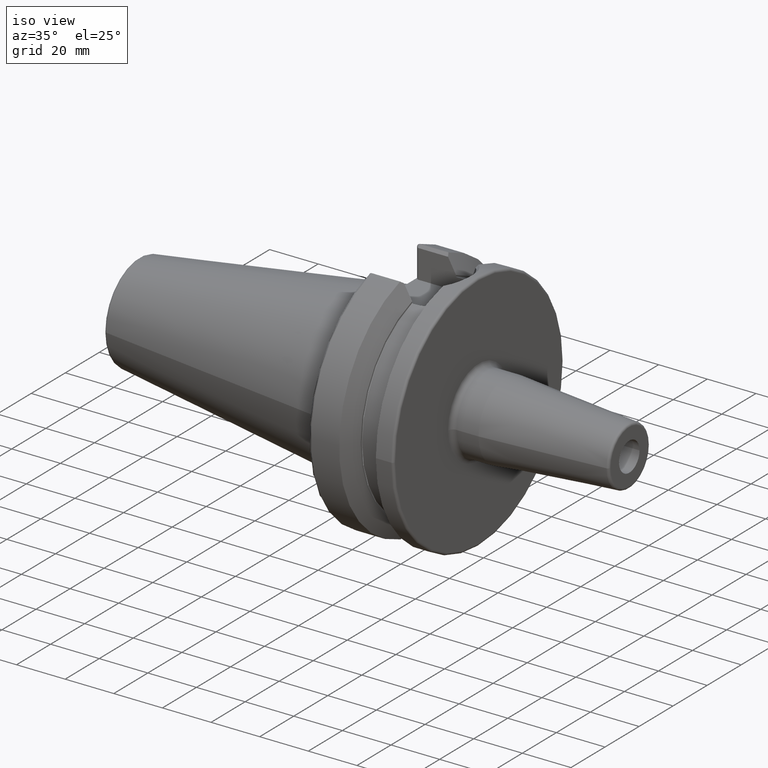
[diagram: clean part render]
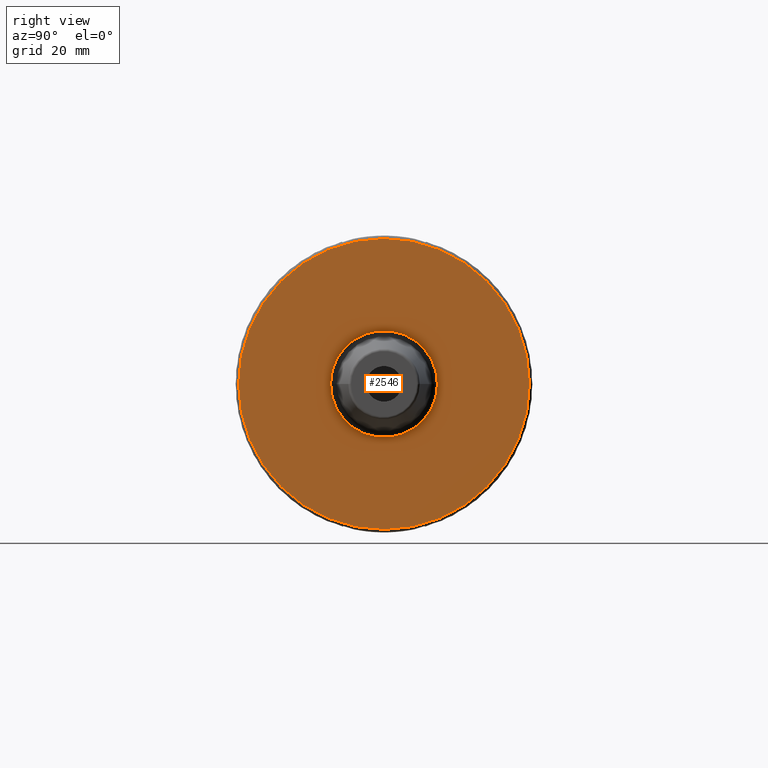
[diagram: tour spotlight — one face highlighted and labeled with its STEP entity id]
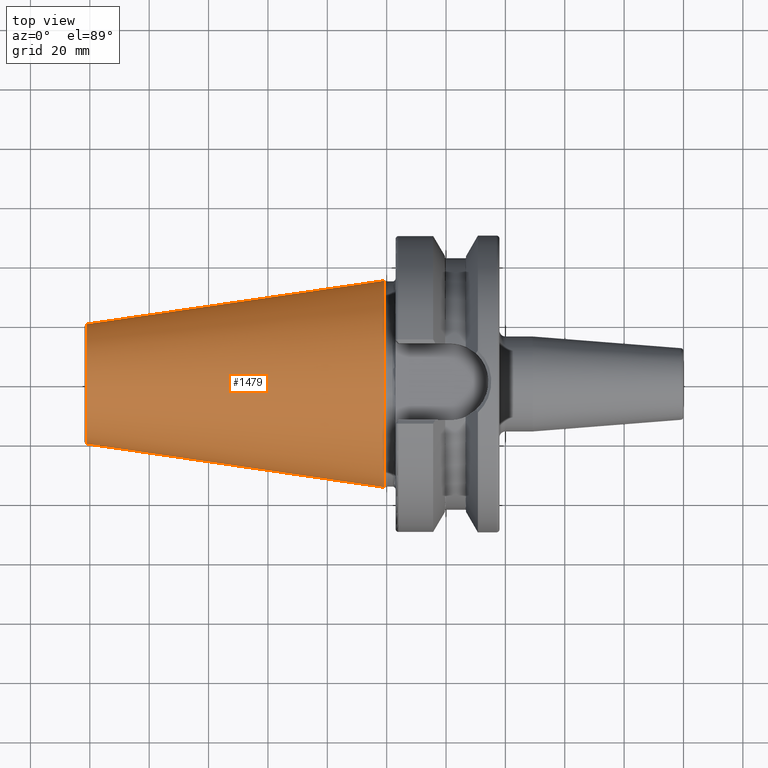
[diagram: tour spotlight — one face highlighted and labeled with its STEP entity id]
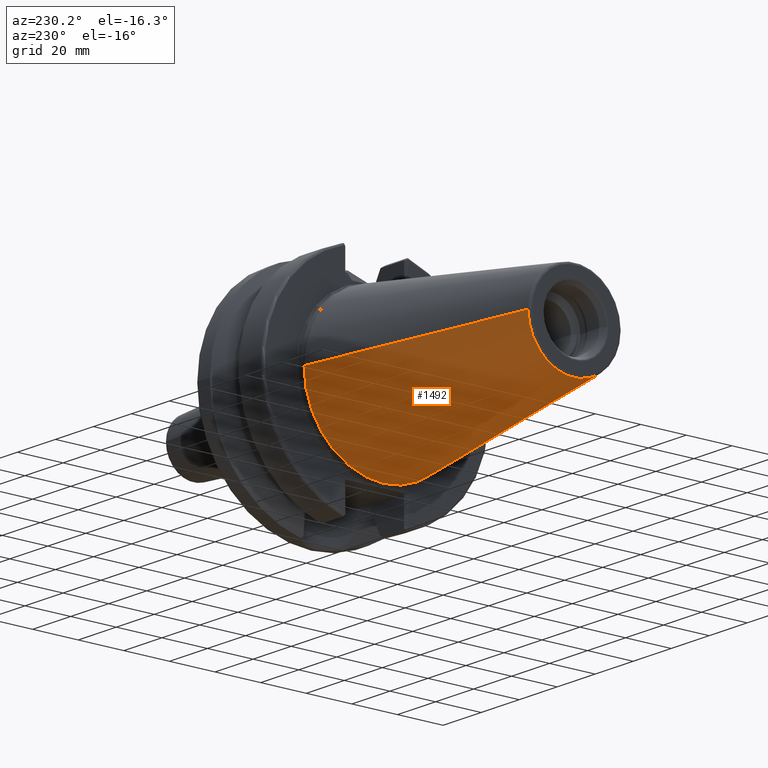
[diagram: tour spotlight — one face highlighted and labeled with its STEP entity id]
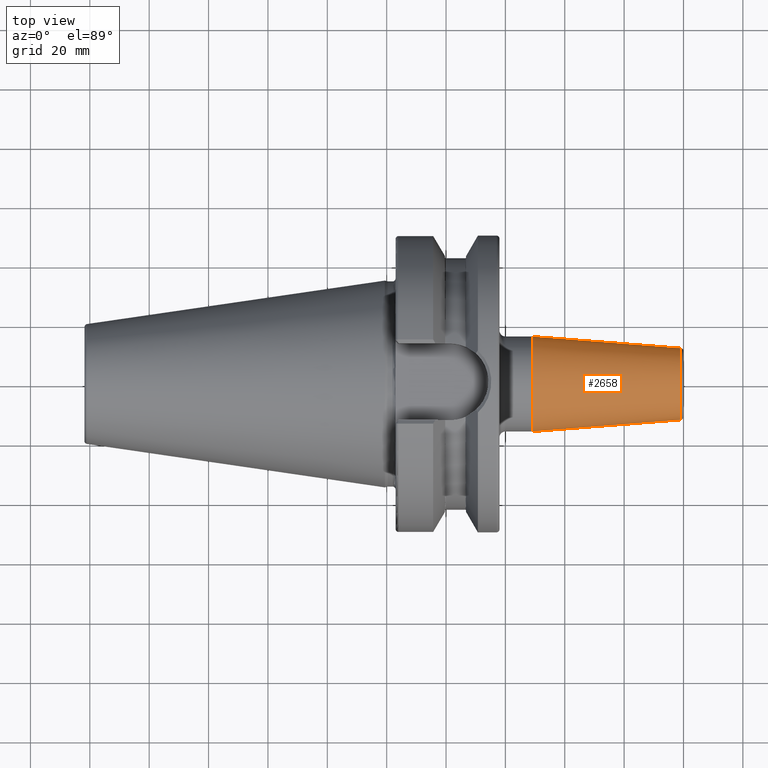
[diagram: tour spotlight — one face highlighted and labeled with its STEP entity id]
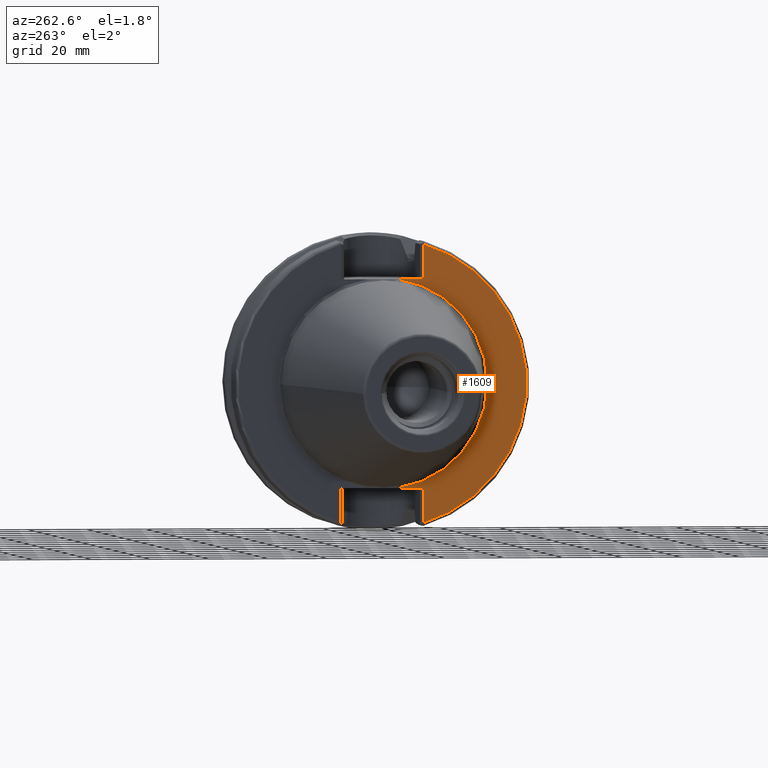
[diagram: tour spotlight — one face highlighted and labeled with its STEP entity id]
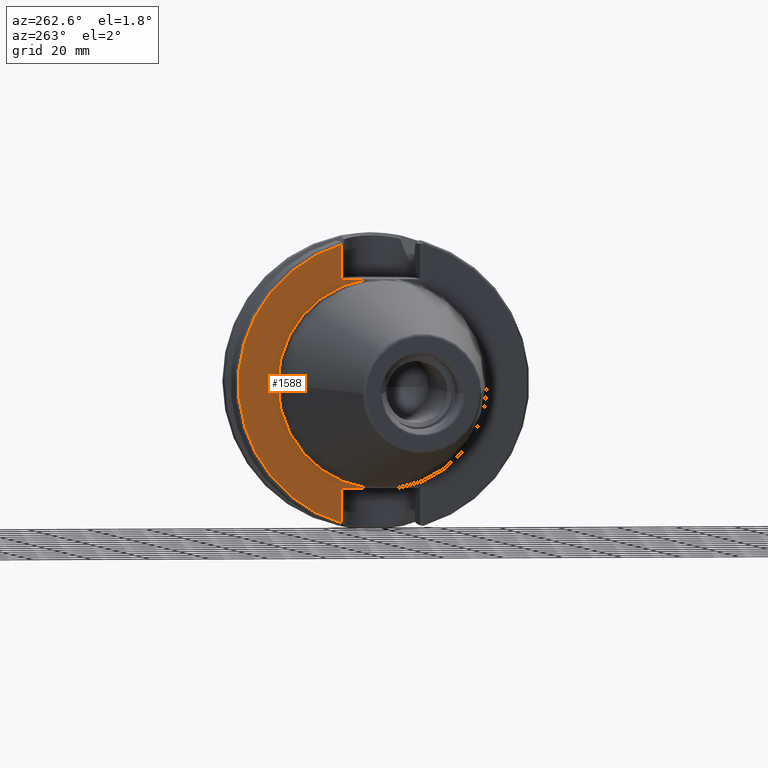
[diagram: tour spotlight — one face highlighted and labeled with its STEP entity id]
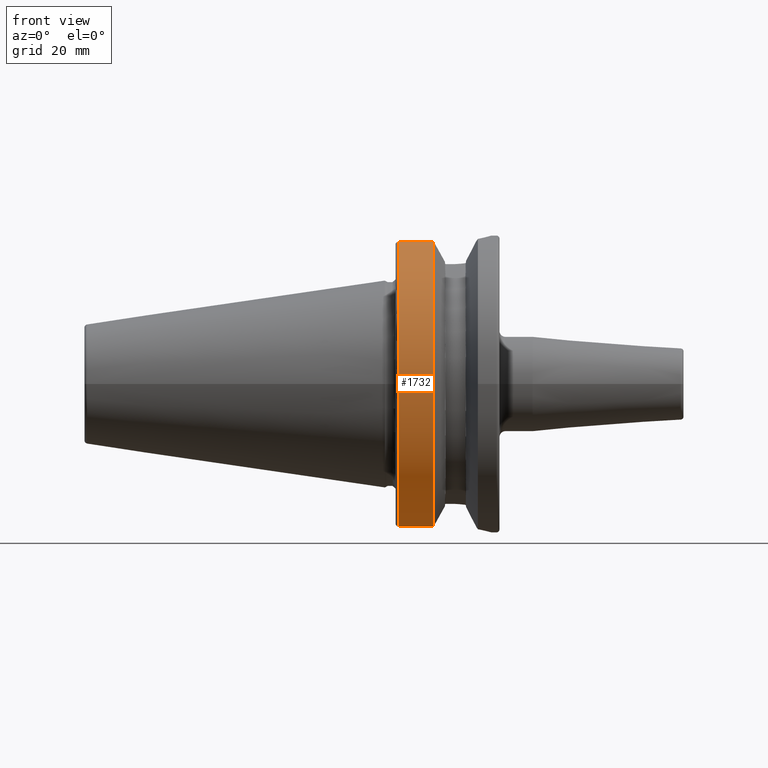
[diagram: tour spotlight — one face highlighted and labeled with its STEP entity id]
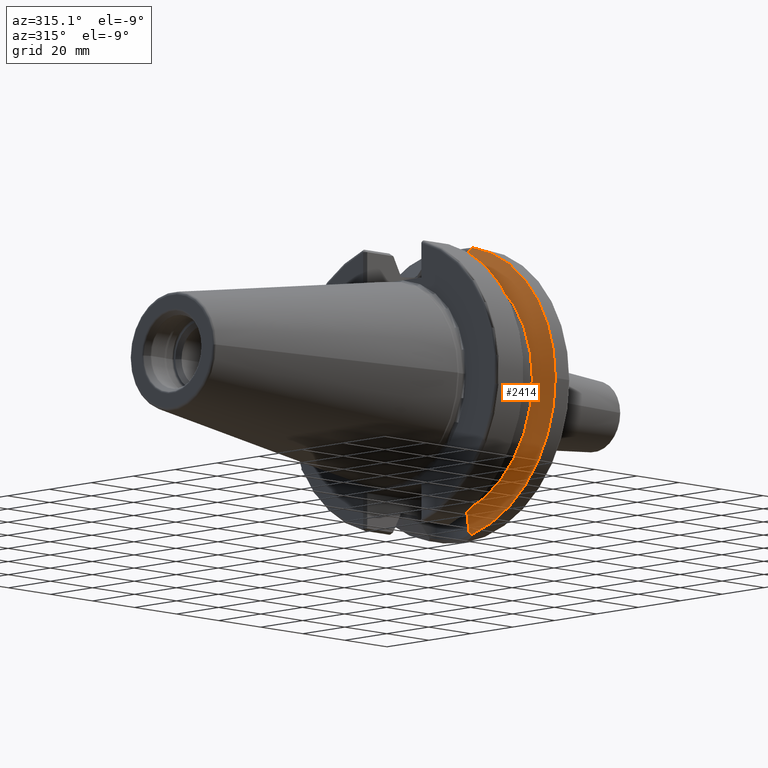
[diagram: tour spotlight — one face highlighted and labeled with its STEP entity id]
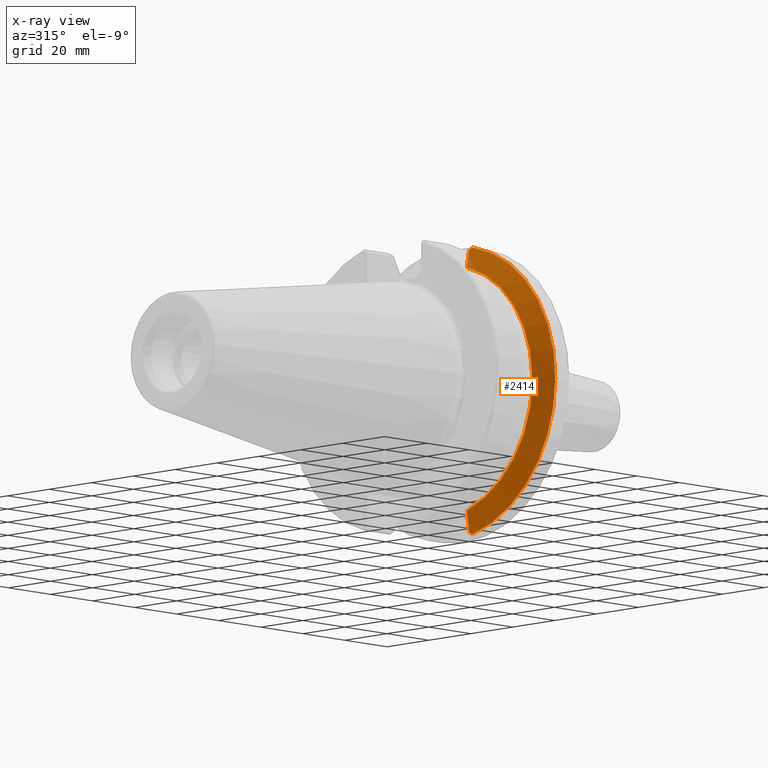
[diagram: x-ray of the same camera — body ghosted, this tour face saturated]
A machine part: a face-by-face anatomy tour. The part has 96 B-rep faces; the first image is the clean iso view, then the 8 largest visible faces are spotlighted one at a time (largest first), each with its STEP entity span.

Face 1 — right view, entity #2546. In plain terms, the highlighted planar face has unit normal (1, 0, 0).
Definition (entity closure, byte-faithful):
#814=CARTESIAN_POINT('',(3.8E1,0.E0,0.E0));
#815=DIRECTION('',(1.E0,0.E0,0.E0));
#816=DIRECTION('',(0.E0,1.E0,0.E0));
#817=AXIS2_PLACEMENT_3D('',#814,#815,#816);
#829=CARTESIAN_POINT('',(3.8E1,0.E0,0.E0));
#830=DIRECTION('',(-1.E0,0.E0,0.E0));
#831=DIRECTION('',(0.E0,1.E0,0.E0));
#832=AXIS2_PLACEMENT_3D('',#829,#830,#831);
#834=CARTESIAN_POINT('',(3.8E1,0.E0,0.E0));
#835=DIRECTION('',(1.E0,0.E0,0.E0));
#836=DIRECTION('',(0.E0,-1.E0,0.E0));
#837=AXIS2_PLACEMENT_3D('',#834,#835,#836);
#839=CARTESIAN_POINT('',(3.8E1,0.E0,0.E0));
#840=DIRECTION('',(1.E0,0.E0,0.E0));
#841=DIRECTION('',(0.E0,1.E0,0.E0));
#842=AXIS2_PLACEMENT_3D('',#839,#840,#841);
#1302=CARTESIAN_POINT('',(3.8E1,4.89875E1,0.E0));
#1303=VERTEX_POINT('',#1302);
#1304=CARTESIAN_POINT('',(3.8E1,-4.89875E1,-1.199847701465E-14));
#1305=VERTEX_POINT('',#1304);
#1403=CARTESIAN_POINT('',(3.8E1,-1.8E1,0.E0));
#1404=CARTESIAN_POINT('',(3.8E1,1.8E1,0.E0));
#1405=VERTEX_POINT('',#1403);
#1406=VERTEX_POINT('',#1404);
#2531=CARTESIAN_POINT('',(3.8E1,0.E0,0.E0));
#2532=DIRECTION('',(1.E0,0.E0,0.E0));
#2533=DIRECTION('',(0.E0,-1.E0,0.E0));
#2534=AXIS2_PLACEMENT_3D('',#2531,#2532,#2533);
#2535=PLANE('',#2534);
#2536=ORIENTED_EDGE('',*,*,#2526,.T.);
#2537=ORIENTED_EDGE('',*,*,#2510,.F.);
#2538=EDGE_LOOP('',(#2536,#2537));
#2539=FACE_OUTER_BOUND('',#2538,.F.);
#2541=ORIENTED_EDGE('',*,*,#2540,.T.);
#2543=ORIENTED_EDGE('',*,*,#2542,.T.);
#2544=EDGE_LOOP('',(#2541,#2543));
#2545=FACE_BOUND('',#2544,.F.);
#2546=ADVANCED_FACE('',(#2539,#2545),#2535,.T.);
#818=CIRCLE('',#817,4.89875E1);
#833=CIRCLE('',#832,4.89875E1);
#838=CIRCLE('',#837,1.8E1);
#843=CIRCLE('',#842,1.8E1);
#2510=EDGE_CURVE('',#1303,#1305,#818,.T.);
#2526=EDGE_CURVE('',#1303,#1305,#833,.T.);
#2540=EDGE_CURVE('',#1405,#1406,#838,.T.);
#2542=EDGE_CURVE('',#1406,#1405,#843,.T.);

Face 2 — top view, entity #1479. In plain terms, the highlighted conical surface has half-angle 8.298 deg.
Definition (entity closure, byte-faithful):
#37=CARTESIAN_POINT('',(-1.009443186692E2,0.E0,0.E0));
#38=DIRECTION('',(1.E0,0.E0,0.E0));
#39=DIRECTION('',(0.E0,1.E0,0.E0));
#40=AXIS2_PLACEMENT_3D('',#37,#38,#39);
#42=CARTESIAN_POINT('',(-6.191906162850E-1,0.E0,0.E0));
#43=DIRECTION('',(1.E0,0.E0,0.E0));
#44=DIRECTION('',(0.E0,1.E0,0.E0));
#45=AXIS2_PLACEMENT_3D('',#42,#43,#44);
#47=DIRECTION('',(-9.895312636440E-1,-1.443186691705E-1,0.E0));
#48=VECTOR('',#47,1.013865167670E2);
#49=CARTESIAN_POINT('',(-6.191906162849E-1,3.483469384295E1,0.E0));
#50=LINE('',#49,#48);
#51=DIRECTION('',(-9.895312636440E-1,1.443186691705E-1,0.E0));
#52=VECTOR('',#51,1.013865167670E2);
#53=CARTESIAN_POINT('',(-6.191906162849E-1,-3.483469384295E1,0.E0));
#54=LINE('',#53,#52);
#1168=CARTESIAN_POINT('',(-1.009443186692E2,2.020272667130E1,0.E0));
#1170=VERTEX_POINT('',#1168);
#1172=CARTESIAN_POINT('',(-1.009443186692E2,-2.020272667130E1,0.E0));
#1174=VERTEX_POINT('',#1172);
#1387=CARTESIAN_POINT('',(-6.191906162849E-1,3.483469384295E1,0.E0));
#1388=VERTEX_POINT('',#1387);
#1389=CARTESIAN_POINT('',(-6.191906162849E-1,-3.483469384295E1,0.E0));
#1390=VERTEX_POINT('',#1389);
#1465=CARTESIAN_POINT('',(-5.078175464273E1,0.E0,0.E0));
#1466=DIRECTION('',(1.E0,0.E0,0.E0));
#1467=DIRECTION('',(0.E0,-1.E0,0.E0));
#1468=AXIS2_PLACEMENT_3D('',#1465,#1466,#1467);
#1469=CONICAL_SURFACE('',#1468,2.751871025712E1,8.297826828206E0);
#1471=ORIENTED_EDGE('',*,*,#1470,.F.);
#1473=ORIENTED_EDGE('',*,*,#1472,.T.);
#1475=ORIENTED_EDGE('',*,*,#1474,.T.);
#1476=ORIENTED_EDGE('',*,*,#1458,.F.);
#1477=EDGE_LOOP('',(#1471,#1473,#1475,#1476));
#1478=FACE_OUTER_BOUND('',#1477,.F.);
#1479=ADVANCED_FACE('',(#1478),#1469,.T.);
#41=CIRCLE('',#40,2.020272667130E1);
#46=CIRCLE('',#45,3.483469384295E1);
#1458=EDGE_CURVE('',#1170,#1174,#41,.T.);
#1470=EDGE_CURVE('',#1388,#1170,#50,.T.);
#1472=EDGE_CURVE('',#1388,#1390,#46,.T.);
#1474=EDGE_CURVE('',#1390,#1174,#54,.T.);

Face 3 — auxiliary view, entity #1492. In plain terms, the highlighted conical surface has half-angle 8.298 deg.
Definition (entity closure, byte-faithful):
#32=CARTESIAN_POINT('',(-1.009443186692E2,0.E0,0.E0));
#33=DIRECTION('',(-1.E0,0.E0,0.E0));
#34=DIRECTION('',(0.E0,1.E0,0.E0));
#35=AXIS2_PLACEMENT_3D('',#32,#33,#34);
#47=DIRECTION('',(-9.895312636440E-1,-1.443186691705E-1,0.E0));
#48=VECTOR('',#47,1.013865167670E2);
#49=CARTESIAN_POINT('',(-6.191906162849E-1,3.483469384295E1,0.E0));
#50=LINE('',#49,#48);
#51=DIRECTION('',(-9.895312636440E-1,1.443186691705E-1,0.E0));
#52=VECTOR('',#51,1.013865167670E2);
#53=CARTESIAN_POINT('',(-6.191906162849E-1,-3.483469384295E1,0.E0));
#54=LINE('',#53,#52);
#55=CARTESIAN_POINT('',(-6.191906162850E-1,0.E0,0.E0));
#56=DIRECTION('',(-1.E0,0.E0,0.E0));
#57=DIRECTION('',(0.E0,1.E0,0.E0));
#58=AXIS2_PLACEMENT_3D('',#55,#56,#57);
#1168=CARTESIAN_POINT('',(-1.009443186692E2,2.020272667130E1,0.E0));
#1170=VERTEX_POINT('',#1168);
#1172=CARTESIAN_POINT('',(-1.009443186692E2,-2.020272667130E1,0.E0));
#1174=VERTEX_POINT('',#1172);
#1387=CARTESIAN_POINT('',(-6.191906162849E-1,3.483469384295E1,0.E0));
#1388=VERTEX_POINT('',#1387);
#1389=CARTESIAN_POINT('',(-6.191906162849E-1,-3.483469384295E1,0.E0));
#1390=VERTEX_POINT('',#1389);
#1480=CARTESIAN_POINT('',(-5.078175464273E1,0.E0,0.E0));
#1481=DIRECTION('',(1.E0,0.E0,0.E0));
#1482=DIRECTION('',(0.E0,-1.E0,0.E0));
#1483=AXIS2_PLACEMENT_3D('',#1480,#1481,#1482);
#1484=CONICAL_SURFACE('',#1483,2.751871025712E1,8.297826828206E0);
#1485=ORIENTED_EDGE('',*,*,#1470,.T.);
#1486=ORIENTED_EDGE('',*,*,#1447,.T.);
#1487=ORIENTED_EDGE('',*,*,#1474,.F.);
#1489=ORIENTED_EDGE('',*,*,#1488,.F.);
#1490=EDGE_LOOP('',(#1485,#1486,#1487,#1489));
#1491=FACE_OUTER_BOUND('',#1490,.F.);
#1492=ADVANCED_FACE('',(#1491),#1484,.T.);
#36=CIRCLE('',#35,2.020272667130E1);
#59=CIRCLE('',#58,3.483469384295E1);
#1447=EDGE_CURVE('',#1170,#1174,#36,.T.);
#1470=EDGE_CURVE('',#1388,#1170,#50,.T.);
#1474=EDGE_CURVE('',#1390,#1174,#54,.T.);
#1488=EDGE_CURVE('',#1388,#1390,#59,.T.);

Face 4 — top view, entity #2658. In plain terms, the highlighted conical surface has half-angle 4.5 deg.
Definition (entity closure, byte-faithful):
#859=CARTESIAN_POINT('',(4.917518105530E1,0.E0,0.E0));
#860=DIRECTION('',(1.E0,0.E0,0.E0));
#861=DIRECTION('',(0.E0,1.E0,0.E0));
#862=AXIS2_PLACEMENT_3D('',#859,#860,#861);
#887=DIRECTION('',(-9.969173337331E-1,7.845909572785E-2,1.098901281772E-13));
#888=VECTOR('',#887,5.005758888107E1);
#889=CARTESIAN_POINT('',(9.907845909573E1,1.207252684207E1,
-5.498875423503E-12));
#890=LINE('',#889,#888);
#891=DIRECTION('',(-9.969173337331E-1,-7.845909572785E-2,-1.098826057728E-13));
#892=VECTOR('',#891,5.005758888107E1);
#893=CARTESIAN_POINT('',(9.907845909573E1,-1.207252684207E1,
5.498498870075E-12));
#894=LINE('',#893,#892);
#905=CARTESIAN_POINT('',(9.907845909573E1,0.E0,0.E0));
#906=DIRECTION('',(-1.E0,0.E0,0.E0));
#907=DIRECTION('',(0.E0,-1.E0,0.E0));
#908=AXIS2_PLACEMENT_3D('',#905,#906,#907);
#1391=CARTESIAN_POINT('',(4.917518105530E1,1.6E1,0.E0));
#1392=CARTESIAN_POINT('',(4.917518105530E1,-1.6E1,0.E0));
#1393=VERTEX_POINT('',#1391);
#1394=VERTEX_POINT('',#1392);
#1411=CARTESIAN_POINT('',(9.907845909573E1,1.207252684207E1,0.E0));
#1412=CARTESIAN_POINT('',(9.907845909573E1,-1.207252684207E1,0.E0));
#1413=VERTEX_POINT('',#1411);
#1414=VERTEX_POINT('',#1412);
#2647=CARTESIAN_POINT('',(7.412682007551E1,0.E0,0.E0));
#2648=DIRECTION('',(-1.E0,0.E0,0.E0));
#2649=DIRECTION('',(0.E0,1.E0,0.E0));
#2650=AXIS2_PLACEMENT_3D('',#2647,#2648,#2649);
#2651=CONICAL_SURFACE('',#2650,1.403626342104E1,4.5E0);
#2652=ORIENTED_EDGE('',*,*,#2638,.F.);
#2653=ORIENTED_EDGE('',*,*,#2613,.T.);
#2654=ORIENTED_EDGE('',*,*,#2583,.F.);
#2655=ORIENTED_EDGE('',*,*,#2610,.F.);
#2656=EDGE_LOOP('',(#2652,#2653,#2654,#2655));
#2657=FACE_OUTER_BOUND('',#2656,.F.);
#2658=ADVANCED_FACE('',(#2657),#2651,.T.);
#863=CIRCLE('',#862,1.6E1);
#909=CIRCLE('',#908,1.207252684207E1);
#2583=EDGE_CURVE('',#1393,#1394,#863,.T.);
#2610=EDGE_CURVE('',#1413,#1393,#890,.T.);
#2613=EDGE_CURVE('',#1414,#1394,#894,.T.);
#2638=EDGE_CURVE('',#1414,#1413,#909,.T.);

Face 5 — auxiliary view, entity #1609. In plain terms, the highlighted planar face has unit normal (1, 0, 0).
Definition (entity closure, byte-faithful):
#111=CARTESIAN_POINT('',(3.E0,0.E0,0.E0));
#112=DIRECTION('',(-1.E0,0.E0,0.E0));
#113=DIRECTION('',(0.E0,-1.448140381786E-1,-9.894588896697E-1));
#114=AXIS2_PLACEMENT_3D('',#111,#112,#113);
#135=DIRECTION('',(-5.798787725116E-7,5.799135254102E-7,-9.999999999997E-1));
#136=VECTOR('',#135,1.177335004623E1);
#137=CARTESIAN_POINT('',(3.E0,-1.39025E1,-3.52E1));
#138=LINE('',#137,#136);
#139=DIRECTION('',(1.226013541690E-6,-1.226161370859E-6,-9.999999999985E-1));
#140=VECTOR('',#139,1.177335390066E1);
#141=CARTESIAN_POINT('',(2.999985565709E0,-1.390248556397E1,4.697335390064E1));
#142=LINE('',#141,#140);
#593=CARTESIAN_POINT('',(2.999993172884E0,-1.390249317248E1,-4.697335004622E1));
#605=CARTESIAN_POINT('',(3.E0,0.E0,0.E0));
#606=DIRECTION('',(-1.E0,0.E0,0.E0));
#607=DIRECTION('',(0.E0,-2.837968955579E-1,-9.588844153868E-1));
#608=AXIS2_PLACEMENT_3D('',#605,#606,#607);
#679=DIRECTION('',(0.E0,1.E0,0.E0));
#680=VECTOR('',#679,8.750740591798E0);
#681=CARTESIAN_POINT('',(3.E0,-1.39025E1,3.52E1));
#682=LINE('',#681,#680);
#720=CARTESIAN_POINT('',(3.E0,0.E0,0.E0));
#721=DIRECTION('',(1.E0,0.E0,0.E0));
#722=DIRECTION('',(0.E0,-1.448140381786E-1,9.894588896697E-1));
#723=AXIS2_PLACEMENT_3D('',#720,#721,#722);
#745=DIRECTION('',(0.E0,-1.E0,0.E0));
#746=VECTOR('',#745,8.750740591798E0);
#747=CARTESIAN_POINT('',(3.E0,-5.151759408202E0,-3.52E1));
#748=LINE('',#747,#746);
#1246=CARTESIAN_POINT('',(3.E0,-3.5575E1,0.E0));
#1248=VERTEX_POINT('',#1246);
#1312=CARTESIAN_POINT('',(3.E0,-5.151759408202E0,3.52E1));
#1313=VERTEX_POINT('',#1312);
#1320=CARTESIAN_POINT('',(3.E0,-5.151759408202E0,-3.52E1));
#1321=VERTEX_POINT('',#1320);
#1350=CARTESIAN_POINT('',(2.999985565709E0,-1.390248556397E1,4.697335390064E1));
#1351=CARTESIAN_POINT('',(3.E0,-1.39025E1,3.52E1));
#1352=VERTEX_POINT('',#1350);
#1353=VERTEX_POINT('',#1351);
#1375=VERTEX_POINT('',#593);
#1377=CARTESIAN_POINT('',(3.E0,-1.39025E1,-3.52E1));
#1378=VERTEX_POINT('',#1377);
#1589=CARTESIAN_POINT('',(3.E0,0.E0,0.E0));
#1590=DIRECTION('',(1.E0,0.E0,0.E0));
#1591=DIRECTION('',(0.E0,-1.E0,0.E0));
#1592=AXIS2_PLACEMENT_3D('',#1589,#1590,#1591);
#1593=PLANE('',#1592);
#1595=ORIENTED_EDGE('',*,*,#1594,.F.);
#1597=ORIENTED_EDGE('',*,*,#1596,.F.);
#1598=ORIENTED_EDGE('',*,*,#1561,.T.);
#1600=ORIENTED_EDGE('',*,*,#1599,.F.);
#1602=ORIENTED_EDGE('',*,*,#1601,.F.);
#1604=ORIENTED_EDGE('',*,*,#1603,.F.);
#1606=ORIENTED_EDGE('',*,*,#1605,.F.);
#1607=EDGE_LOOP('',(#1595,#1597,#1598,#1600,#1602,#1604,#1606));
#1608=FACE_OUTER_BOUND('',#1607,.F.);
#1609=ADVANCED_FACE('',(#1608),#1593,.F.);
#115=CIRCLE('',#114,3.5575E1);
#609=CIRCLE('',#608,4.89875E1);
#724=CIRCLE('',#723,3.5575E1);
#1561=EDGE_CURVE('',#1321,#1248,#115,.T.);
#1594=EDGE_CURVE('',#1378,#1375,#138,.T.);
#1596=EDGE_CURVE('',#1321,#1378,#748,.T.);
#1599=EDGE_CURVE('',#1313,#1248,#724,.T.);
#1601=EDGE_CURVE('',#1353,#1313,#682,.T.);
#1603=EDGE_CURVE('',#1352,#1353,#142,.T.);
#1605=EDGE_CURVE('',#1375,#1352,#609,.T.);

Face 6 — auxiliary view, entity #1588. In plain terms, the highlighted planar face has unit normal (1, 0, 0).
Definition (entity closure, byte-faithful):
#96=CARTESIAN_POINT('',(3.E0,0.E0,0.E0));
#97=DIRECTION('',(-1.E0,0.E0,0.E0));
#98=DIRECTION('',(0.E0,1.E0,0.E0));
#99=AXIS2_PLACEMENT_3D('',#96,#97,#98);
#127=DIRECTION('',(5.798787724366E-7,5.799135248072E-7,9.999999999997E-1));
#128=VECTOR('',#127,1.177335004622E1);
#129=CARTESIAN_POINT('',(2.999993172884E0,1.390249317248E1,-4.697335004621E1));
#130=LINE('',#129,#128);
#131=DIRECTION('',(-1.226013541637E-6,-1.226161370240E-6,9.999999999985E-1));
#132=VECTOR('',#131,1.177335390080E1);
#133=CARTESIAN_POINT('',(3.E0,1.39025E1,3.52E1));
#134=LINE('',#133,#132);
#588=CARTESIAN_POINT('',(3.E0,0.E0,0.E0));
#589=DIRECTION('',(-1.E0,0.E0,0.E0));
#590=DIRECTION('',(0.E0,2.837969049058E-1,9.588844126201E-1));
#591=AXIS2_PLACEMENT_3D('',#588,#589,#590);
#683=DIRECTION('',(0.E0,1.E0,0.E0));
#684=VECTOR('',#683,8.750740591798E0);
#685=CARTESIAN_POINT('',(3.E0,5.151759408202E0,3.52E1));
#686=LINE('',#685,#684);
#704=CARTESIAN_POINT('',(3.E0,0.E0,0.E0));
#705=DIRECTION('',(1.E0,0.E0,0.E0));
#706=DIRECTION('',(0.E0,1.E0,0.E0));
#707=AXIS2_PLACEMENT_3D('',#704,#705,#706);
#741=DIRECTION('',(0.E0,-1.E0,0.E0));
#742=VECTOR('',#741,8.750740591798E0);
#743=CARTESIAN_POINT('',(3.E0,1.39025E1,-3.52E1));
#744=LINE('',#743,#742);
#1240=CARTESIAN_POINT('',(3.E0,3.5575E1,0.E0));
#1242=VERTEX_POINT('',#1240);
#1310=CARTESIAN_POINT('',(3.E0,5.151759408202E0,3.52E1));
#1311=VERTEX_POINT('',#1310);
#1318=CARTESIAN_POINT('',(3.E0,5.151759408202E0,-3.52E1));
#1319=VERTEX_POINT('',#1318);
#1356=CARTESIAN_POINT('',(3.E0,1.390251954398E1,4.697334463905E1));
#1358=VERTEX_POINT('',#1356);
#1360=CARTESIAN_POINT('',(3.E0,1.39025E1,3.52E1));
#1361=VERTEX_POINT('',#1360);
#1370=CARTESIAN_POINT('',(2.999993172884E0,1.390249317248E1,-4.697335004621E1));
#1371=CARTESIAN_POINT('',(3.E0,1.39025E1,-3.52E1));
#1372=VERTEX_POINT('',#1370);
#1373=VERTEX_POINT('',#1371);
#1568=CARTESIAN_POINT('',(3.E0,0.E0,0.E0));
#1569=DIRECTION('',(1.E0,0.E0,0.E0));
#1570=DIRECTION('',(0.E0,-1.E0,0.E0));
#1571=AXIS2_PLACEMENT_3D('',#1568,#1569,#1570);
#1572=PLANE('',#1571);
#1574=ORIENTED_EDGE('',*,*,#1573,.F.);
#1576=ORIENTED_EDGE('',*,*,#1575,.F.);
#1578=ORIENTED_EDGE('',*,*,#1577,.F.);
#1580=ORIENTED_EDGE('',*,*,#1579,.F.);
#1582=ORIENTED_EDGE('',*,*,#1581,.F.);
#1583=ORIENTED_EDGE('',*,*,#1554,.T.);
#1585=ORIENTED_EDGE('',*,*,#1584,.F.);
#1586=EDGE_LOOP('',(#1574,#1576,#1578,#1580,#1582,#1583,#1585));
#1587=FACE_OUTER_BOUND('',#1586,.F.);
#1588=ADVANCED_FACE('',(#1587),#1572,.F.);
#100=CIRCLE('',#99,3.5575E1);
#592=CIRCLE('',#591,4.89875E1);
#708=CIRCLE('',#707,3.5575E1);
#1554=EDGE_CURVE('',#1242,#1319,#100,.T.);
#1573=EDGE_CURVE('',#1372,#1373,#130,.T.);
#1575=EDGE_CURVE('',#1358,#1372,#592,.T.);
#1577=EDGE_CURVE('',#1361,#1358,#134,.T.);
#1579=EDGE_CURVE('',#1311,#1361,#686,.T.);
#1581=EDGE_CURVE('',#1242,#1311,#708,.T.);
#1584=EDGE_CURVE('',#1373,#1319,#744,.T.);

Face 7 — front view, entity #1732. In plain terms, the highlighted cylindrical surface (partial cylindrical patch) has radius 49.9875 mm, axis along (1, 0, 0).
Definition (entity closure, byte-faithful):
#209=CARTESIAN_POINT('',(1.566933176383E1,0.E0,0.E0));
#210=DIRECTION('',(1.E0,0.E0,0.E0));
#211=DIRECTION('',(0.E0,-2.837968869610E-1,9.588844179312E-1));
#212=AXIS2_PLACEMENT_3D('',#209,#210,#211);
#214=DIRECTION('',(1.E0,-7.302338068593E-8,9.708531994237E-8));
#215=VECTOR('',#214,1.166933176412E1);
#216=CARTESIAN_POINT('',(3.999999999701E0,-1.386327248661E1,-4.802665840350E1));
#217=LINE('',#216,#215);
#218=CARTESIAN_POINT('',(4.E0,0.E0,0.E0));
#219=DIRECTION('',(-1.E0,0.E0,0.E0));
#220=DIRECTION('',(0.E0,-2.773348004750E-1,-9.607733387462E-1));
#221=AXIS2_PLACEMENT_3D('',#218,#219,#220);
#223=DIRECTION('',(-9.999999999989E-1,8.887251744650E-7,1.189757232592E-6));
#224=VECTOR('',#223,1.166933177277E1);
#225=CARTESIAN_POINT('',(1.566933176383E1,-1.418629688696E1,4.793223484134E1));
#226=LINE('',#225,#224);
#603=CARTESIAN_POINT('',(3.999999999701E0,-1.386327248661E1,-4.802665840350E1));
#1338=CARTESIAN_POINT('',(1.566933176383E1,-1.418629688696E1,4.793223484134E1));
#1339=CARTESIAN_POINT('',(1.566933176383E1,-1.386327333875E1,
-4.802665727057E1));
#1340=VERTEX_POINT('',#1338);
#1341=VERTEX_POINT('',#1339);
#1354=CARTESIAN_POINT('',(4.E0,-1.418631682991E1,4.793222893890E1));
#1355=VERTEX_POINT('',#1354);
#1376=VERTEX_POINT('',#603);
#1718=CARTESIAN_POINT('',(-1.0879E2,0.E0,0.E0));
#1719=DIRECTION('',(1.E0,0.E0,0.E0));
#1720=DIRECTION('',(0.E0,-1.E0,0.E0));
#1721=AXIS2_PLACEMENT_3D('',#1718,#1719,#1720);
#1722=CYLINDRICAL_SURFACE('',#1721,4.99875E1);
#1723=ORIENTED_EDGE('',*,*,#1709,.T.);
#1725=ORIENTED_EDGE('',*,*,#1724,.F.);
#1727=ORIENTED_EDGE('',*,*,#1726,.T.);
#1729=ORIENTED_EDGE('',*,*,#1728,.F.);
#1730=EDGE_LOOP('',(#1723,#1725,#1727,#1729));
#1731=FACE_OUTER_BOUND('',#1730,.F.);
#1732=ADVANCED_FACE('',(#1731),#1722,.T.);
#213=CIRCLE('',#212,4.99875E1);
#222=CIRCLE('',#221,4.99875E1);
#1709=EDGE_CURVE('',#1340,#1341,#213,.T.);
#1724=EDGE_CURVE('',#1376,#1341,#217,.T.);
#1726=EDGE_CURVE('',#1376,#1355,#222,.T.);
#1728=EDGE_CURVE('',#1340,#1355,#226,.T.);

Face 8 — auxiliary view, entity #2414. An x-ray twin of the same camera follows (body ghosted, this face saturated) — the face is partly hidden behind the body. In plain terms, the highlighted conical surface has half-angle 60 deg.
Definition (entity closure, byte-faithful):
#245=CARTESIAN_POINT('',(3.073066823617E1,0.E0,0.E0));
#246=DIRECTION('',(1.E0,0.E0,0.E0));
#247=DIRECTION('',(0.E0,-1.E0,0.E0));
#248=AXIS2_PLACEMENT_3D('',#245,#246,#247);
#391=CARTESIAN_POINT('',(3.016210431090E1,-9.422168385896E0,-4.808834737145E1));
#392=CARTESIAN_POINT('',(2.984184465633E1,-9.721776927818E0,-4.746439031418E1));
#393=CARTESIAN_POINT('',(2.916110296190E1,-1.029742776940E1,-4.613939859477E1));
#394=CARTESIAN_POINT('',(2.801848253867E1,-1.107377940524E1,-4.392131510326E1));
#395=CARTESIAN_POINT('',(2.717774587881E1,-1.152030945269E1,-4.229484073698E1));
#396=CARTESIAN_POINT('',(2.67375E1,-1.172273032403E1,-4.144514217760E1));
#509=CARTESIAN_POINT('',(2.67375E1,-1.172273032403E1,4.144514217760E1));
#510=CARTESIAN_POINT('',(2.716326249817E1,-1.152696877347E1,4.226688702234E1));
#511=CARTESIAN_POINT('',(2.797767730262E1,-1.109641946289E1,4.384231514855E1));
#512=CARTESIAN_POINT('',(2.908877542636E1,-1.035012398508E1,4.599886190686E1));
#513=CARTESIAN_POINT('',(2.975376209181E1,-9.797469511785E0,4.729292626465E1));
#514=CARTESIAN_POINT('',(3.006746015187E1,-9.509826559925E0,4.790397267337E1));
#763=CARTESIAN_POINT('',(2.67375E1,0.E0,0.E0));
#764=DIRECTION('',(-1.E0,0.E0,0.E0));
#765=DIRECTION('',(0.E0,-2.721714149834E-1,-9.622487832499E-1));
#766=AXIS2_PLACEMENT_3D('',#763,#764,#765);
#768=CARTESIAN_POINT('',(3.073066823617E1,-1.024362896192E1,-4.892666166765E1));
#769=CARTESIAN_POINT('',(3.066616058198E1,-1.015105563406E1,-4.883189036884E1));
#770=CARTESIAN_POINT('',(3.053803749239E1,-9.966777409929E0,-4.864343408956E1));
#771=CARTESIAN_POINT('',(3.034851551012E1,-9.692952413043E0,-4.836399253968E1));
#772=CARTESIAN_POINT('',(3.022394652802E1,-9.512141392294E0,-4.817986911933E1));
#773=CARTESIAN_POINT('',(3.016210431090E1,-9.422168385896E0,-4.808834737145E1));
#792=CARTESIAN_POINT('',(3.073066823617E1,0.E0,0.E0));
#793=DIRECTION('',(1.E0,0.E0,0.E0));
#794=DIRECTION('',(0.E0,-2.094051574285E-1,9.778289625708E-1));
#795=AXIS2_PLACEMENT_3D('',#792,#793,#794);
#955=CARTESIAN_POINT('',(3.006746015187E1,-9.509826559925E0,4.790397267337E1));
#956=CARTESIAN_POINT('',(3.013934013849E1,-9.614488815529E0,4.801012460295E1));
#957=CARTESIAN_POINT('',(3.028430182064E1,-9.824984272055E0,4.822389705980E1));
#958=CARTESIAN_POINT('',(3.050537248019E1,-1.014426259119E1,4.854898701617E1));
#959=CARTESIAN_POINT('',(3.065516521337E1,-1.035945529402E1,4.876865319706E1));
#960=CARTESIAN_POINT('',(3.073066823617E1,-1.046764030696E1,4.887922526651E1));
#1212=CARTESIAN_POINT('',(2.67375E1,-1.172273032403E1,-4.144514217760E1));
#1213=CARTESIAN_POINT('',(2.67375E1,-1.172273032403E1,4.144514217760E1));
#1214=VERTEX_POINT('',#1212);
#1215=VERTEX_POINT('',#1213);
#1228=CARTESIAN_POINT('',(3.073066823617E1,-4.99875E1,-1.224340637448E-14));
#1229=CARTESIAN_POINT('',(3.073066823617E1,-1.024362896192E1,
-4.892666166765E1));
#1230=VERTEX_POINT('',#1228);
#1231=VERTEX_POINT('',#1229);
#1236=CARTESIAN_POINT('',(3.073066823617E1,-1.046764030696E1,4.887922526651E1));
#1237=VERTEX_POINT('',#1236);
#1328=VERTEX_POINT('',#514);
#1336=VERTEX_POINT('',#391);
#2397=CARTESIAN_POINT('',(2.873408411809E1,0.E0,0.E0));
#2398=DIRECTION('',(1.E0,0.E0,0.E0));
#2399=DIRECTION('',(0.E0,-1.E0,0.E0));
#2400=AXIS2_PLACEMENT_3D('',#2397,#2398,#2399);
#2401=CONICAL_SURFACE('',#2400,4.652931486589E1,6.E1);
#2403=ORIENTED_EDGE('',*,*,#2402,.T.);
#2404=ORIENTED_EDGE('',*,*,#1753,.T.);
#2406=ORIENTED_EDGE('',*,*,#2405,.T.);
#2407=ORIENTED_EDGE('',*,*,#1876,.T.);
#2408=ORIENTED_EDGE('',*,*,#1921,.T.);
#2409=ORIENTED_EDGE('',*,*,#1972,.T.);
#2411=ORIENTED_EDGE('',*,*,#2410,.T.);
#2412=EDGE_LOOP('',(#2403,#2404,#2406,#2407,#2408,#2409,#2411));
#2413=FACE_OUTER_BOUND('',#2412,.F.);
#2414=ADVANCED_FACE('',(#2413),#2401,.T.);
#249=CIRCLE('',#248,4.99875E1);
#397=B_SPLINE_CURVE_WITH_KNOTS('',3,(#391,#392,#393,#394,#395,#396),
.UNSPECIFIED.,.F.,.F.,(4,1,1,4),(0.E0,3.333333333333E-1,6.666666666667E-1,1.E0),
.UNSPECIFIED.);
#515=B_SPLINE_CURVE_WITH_KNOTS('',3,(#509,#510,#511,#512,#513,#514),
.UNSPECIFIED.,.F.,.F.,(4,1,1,4),(0.E0,3.333333333333E-1,6.666666666667E-1,1.E0),
.UNSPECIFIED.);
#767=CIRCLE('',#766,4.307112973177E1);
#774=B_SPLINE_CURVE_WITH_KNOTS('',3,(#768,#769,#770,#771,#772,#773),
.UNSPECIFIED.,.F.,.F.,(4,1,1,4),(0.E0,3.333333333333E-1,6.666666666667E-1,1.E0),
.UNSPECIFIED.);
#796=CIRCLE('',#795,4.99875E1);
#961=B_SPLINE_CURVE_WITH_KNOTS('',3,(#955,#956,#957,#958,#959,#960),
.UNSPECIFIED.,.F.,.F.,(4,1,1,4),(0.E0,3.333333333333E-1,6.666666666667E-1,1.E0),
.UNSPECIFIED.);
#1753=EDGE_CURVE('',#1230,#1231,#249,.T.);
#1876=EDGE_CURVE('',#1336,#1214,#397,.T.);
#1921=EDGE_CURVE('',#1214,#1215,#767,.T.);
#1972=EDGE_CURVE('',#1215,#1328,#515,.T.);
#2402=EDGE_CURVE('',#1237,#1230,#796,.T.);
#2405=EDGE_CURVE('',#1231,#1336,#774,.T.);
#2410=EDGE_CURVE('',#1328,#1237,#961,.T.);